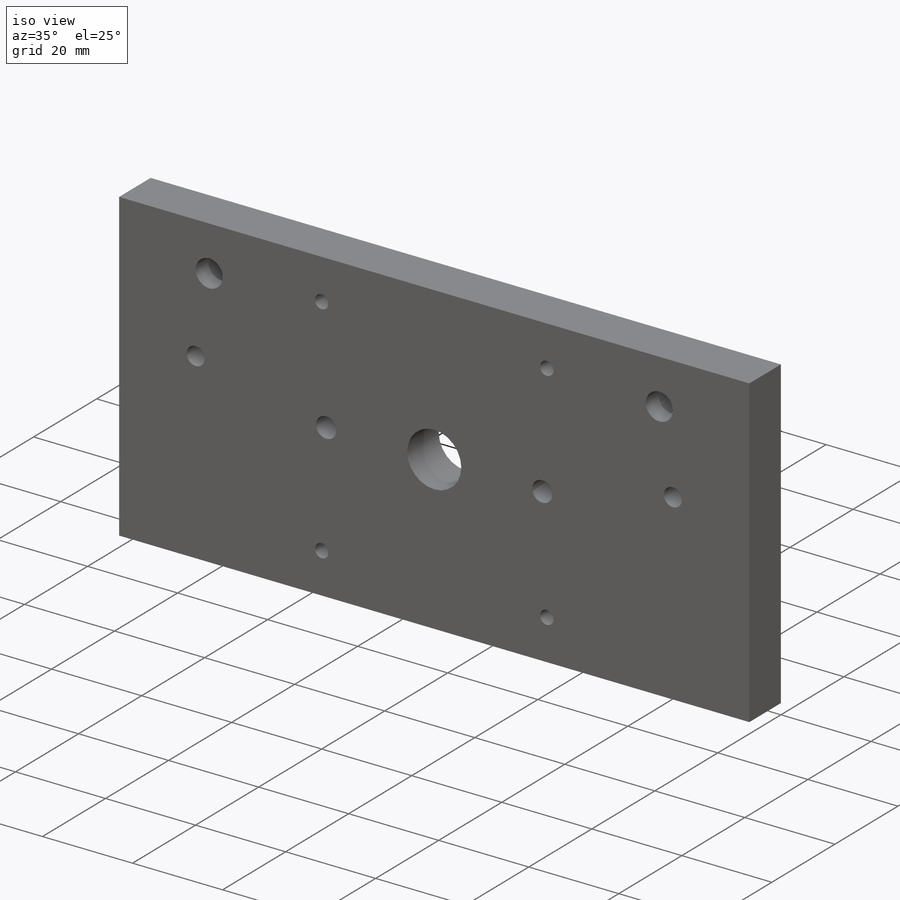
[diagram: iso view]
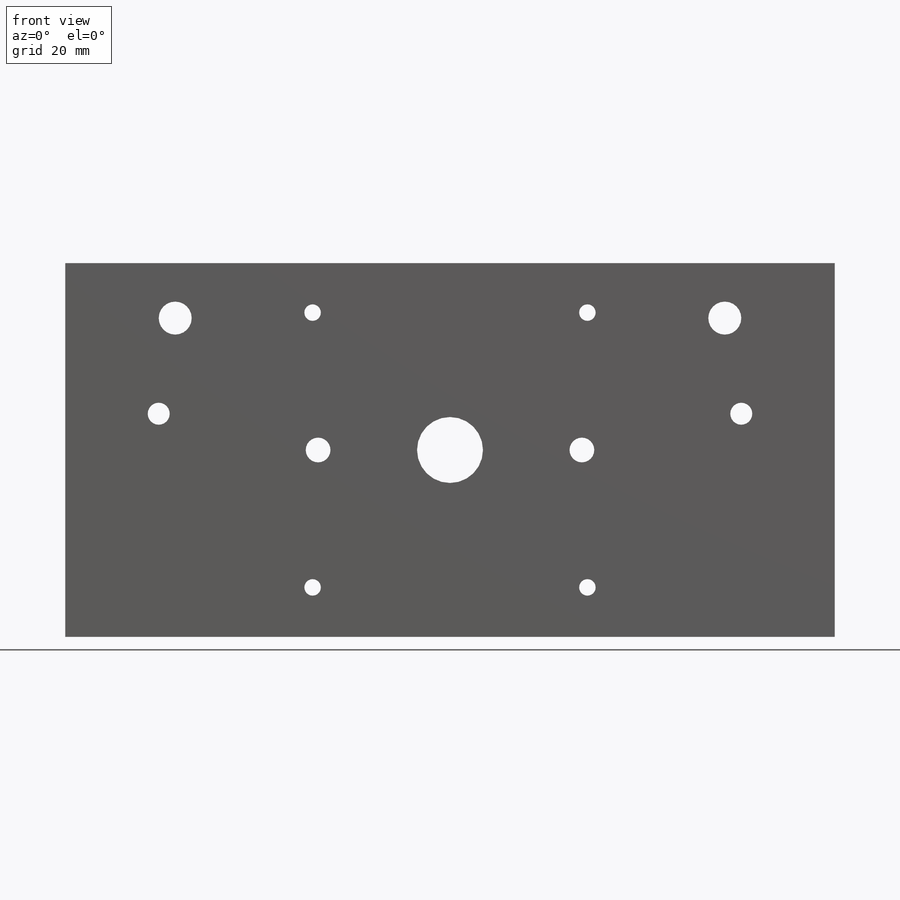
[diagram: front view]
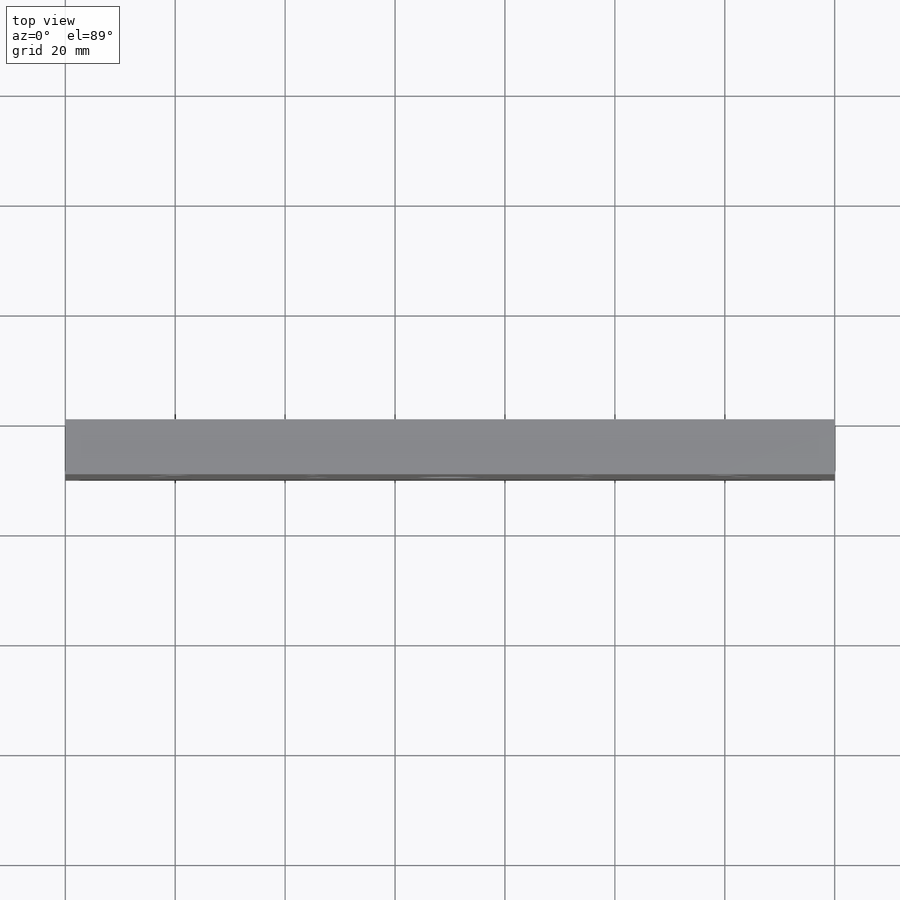
[diagram: top view]
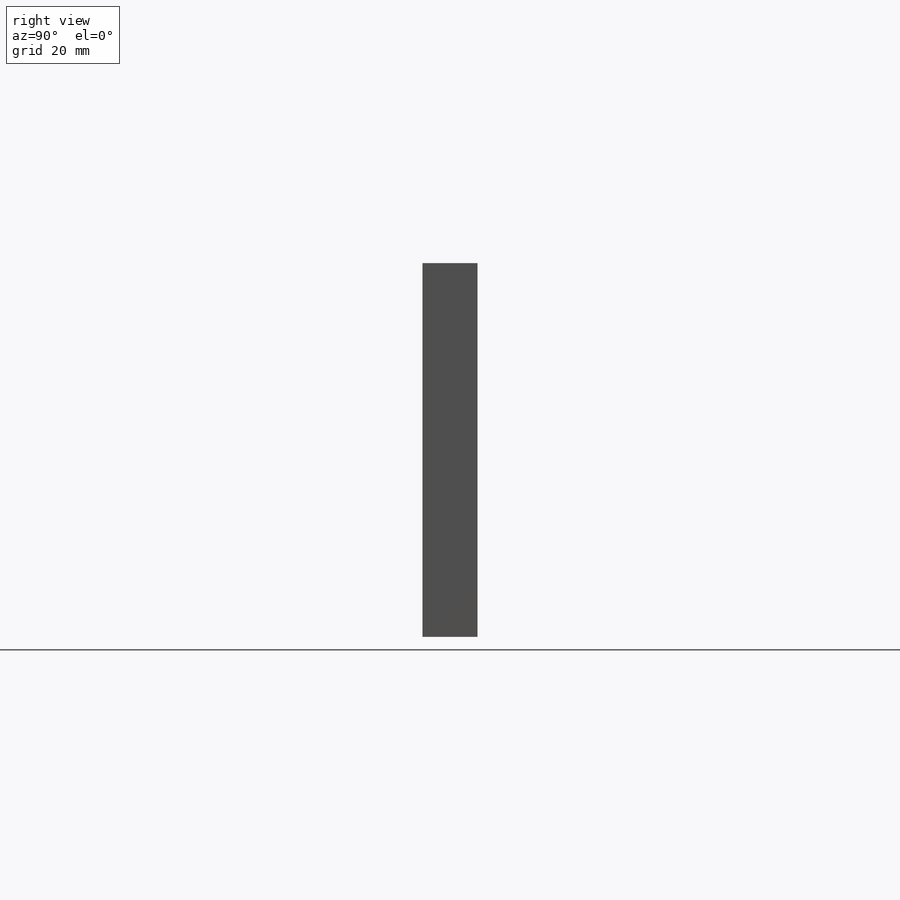
[diagram: right view]
SOLIDWORKS PART (.sldprt)
format: sldprt  version: not decoded by parser v0  size: 306,688 bytes
history: native  units: mm
features: sketch x4, cut_extrude x3, material x1, extrude x1 (+12 scaffold rows collapsed)
feature tree (21):
  scaffold x12  (default folders/planes/origin — collapsed)
  material  "7079 Alloy"
  sketch  "Sketch1"  dims[c1.D3=3.0mm c1.D5=~3.172128mm c1.D6=~4.038407mm c1.D1=68.0mm c1.D2=140.0mm c2.D3=26.9mm c2.D4=9.5mm c2.D5=9.5mm c3.D3=17.0mm c3.D4=17.0mm c3.D5=27.4mm c3.D6=27.4mm]
  extrude  "Extrude1"  Depth=10mm
  sketch  "Sketch2"  dims[D1=4.0mm]
  cut_extrude  "Cut-Extrude1"  Depth=10mm
  sketch  "Sketch4"  dims[D1=3.0mm]
  cut_extrude  "Cut-Extrude2"  Depth=6mm
  sketch  "Sketch5"  dims[D1=~5.215264mm]
  cut_extrude  "Cut-Extrude3"  Depth=4mm
decode coverage: 8 of 8 modeling features carry decoded parameters
note: ~ marks probable driven/reference dimensions
note: suppression state not decoded; provenance and decode notes live in map.json
